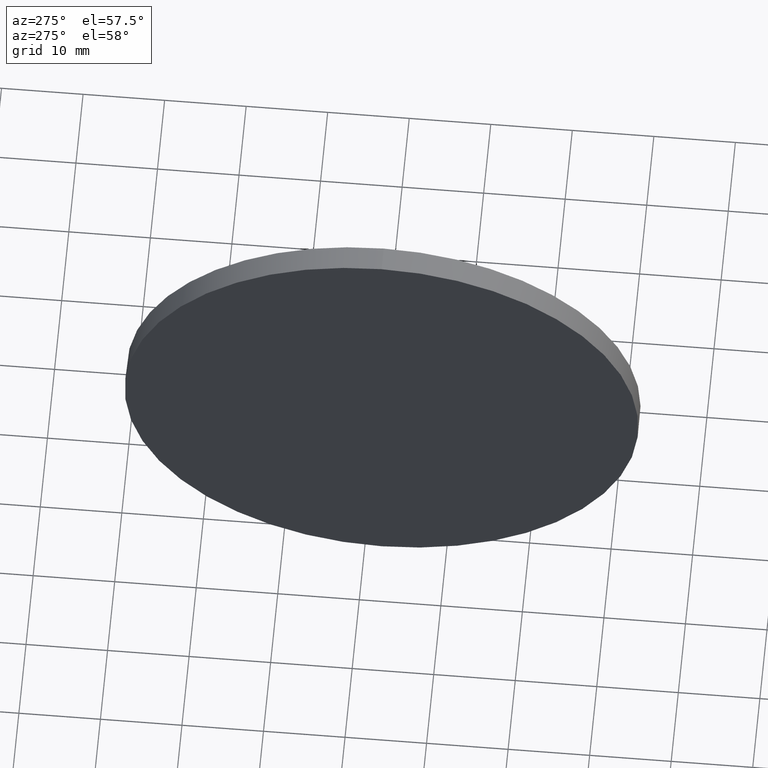
[diagram: clean part render]
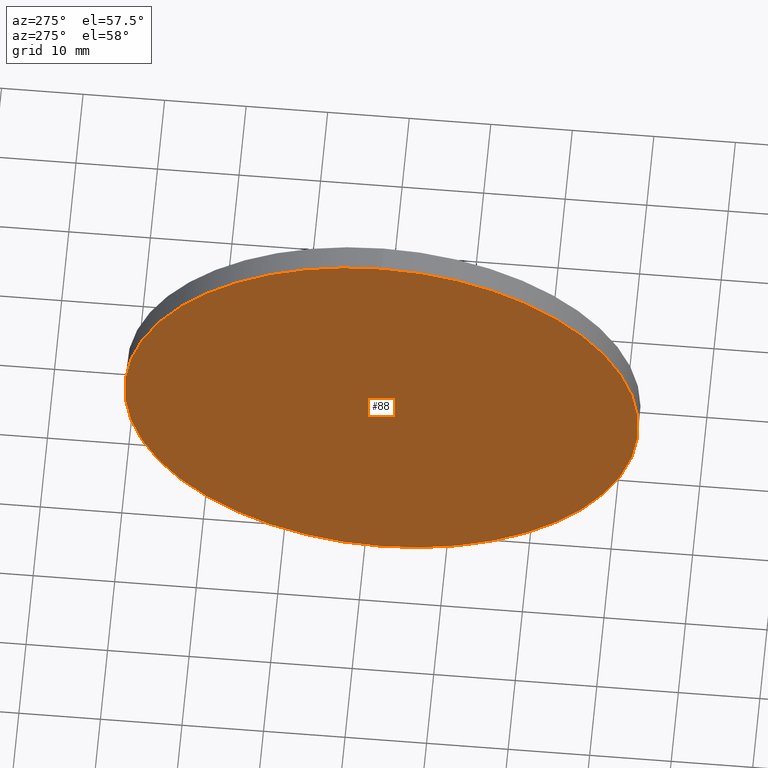
[diagram: same view with one face highlighted and labeled with its STEP entity id]
A machine part, auxiliary view. The second image highlights one B-rep face of the part: STEP entity #88.
In plain terms, the highlighted planar face has unit normal (1, 0, 0).
Its self-contained STEP definition (entity closure, byte-faithful):
#8 = CIRCLE ( 'NONE', #11, 31.50000000000000700 ) ;
#11 = AXIS2_PLACEMENT_3D ( 'NONE', #161, #90, #185 ) ;
#14 = PLANE ( 'NONE',  #45 ) ;
#16 = CARTESIAN_POINT ( 'NONE',  ( 467.1016550187782700, 57.89546231009239800, 31.50000000000000700 ) ) ;
#30 = AXIS2_PLACEMENT_3D ( 'NONE', #146, #157, #43 ) ;
#43 = DIRECTION ( 'NONE',  ( 0.0000000000000000000, 0.0000000000000000000, 1.000000000000000000 ) ) ;
#45 = AXIS2_PLACEMENT_3D ( 'NONE', #131, #62, #165 ) ;
#62 = DIRECTION ( 'NONE',  ( 1.000000000000000000, 0.0000000000000000000, 0.0000000000000000000 ) ) ;
#76 = EDGE_LOOP ( 'NONE', ( #93, #115 ) ) ;
#81 = CIRCLE ( 'NONE', #30, 31.50000000000000700 ) ;
#85 = EDGE_CURVE ( 'NONE', #155, #162, #81, .T. ) ;
#88 = ADVANCED_FACE ( 'NONE', ( #116 ), #14, .F. ) ;
#90 = DIRECTION ( 'NONE',  ( -1.000000000000000000, -0.0000000000000000000, -0.0000000000000000000 ) ) ;
#93 = ORIENTED_EDGE ( 'NONE', *, *, #144, .T. ) ;
#115 = ORIENTED_EDGE ( 'NONE', *, *, #85, .T. ) ;
#116 = FACE_OUTER_BOUND ( 'NONE', #76, .T. ) ;
#131 = CARTESIAN_POINT ( 'NONE',  ( 467.1016550187782700, 57.89546231009239800, 0.0000000000000000000 ) ) ;
#132 = CARTESIAN_POINT ( 'NONE',  ( 467.1016550187782700, 57.89546231009240500, -31.50000000000000700 ) ) ;
#144 = EDGE_CURVE ( 'NONE', #162, #155, #8, .T. ) ;
#146 = CARTESIAN_POINT ( 'NONE',  ( 467.1016550187782700, 57.89546231009239800, 0.0000000000000000000 ) ) ;
#155 = VERTEX_POINT ( 'NONE', #132 ) ;
#157 = DIRECTION ( 'NONE',  ( -1.000000000000000000, -0.0000000000000000000, -0.0000000000000000000 ) ) ;
#161 = CARTESIAN_POINT ( 'NONE',  ( 467.1016550187782700, 57.89546231009239800, 0.0000000000000000000 ) ) ;
#162 = VERTEX_POINT ( 'NONE', #16 ) ;
#165 = DIRECTION ( 'NONE',  ( 0.0000000000000000000, 0.0000000000000000000, -1.000000000000000000 ) ) ;
#185 = DIRECTION ( 'NONE',  ( 0.0000000000000000000, 0.0000000000000000000, 1.000000000000000000 ) ) ;